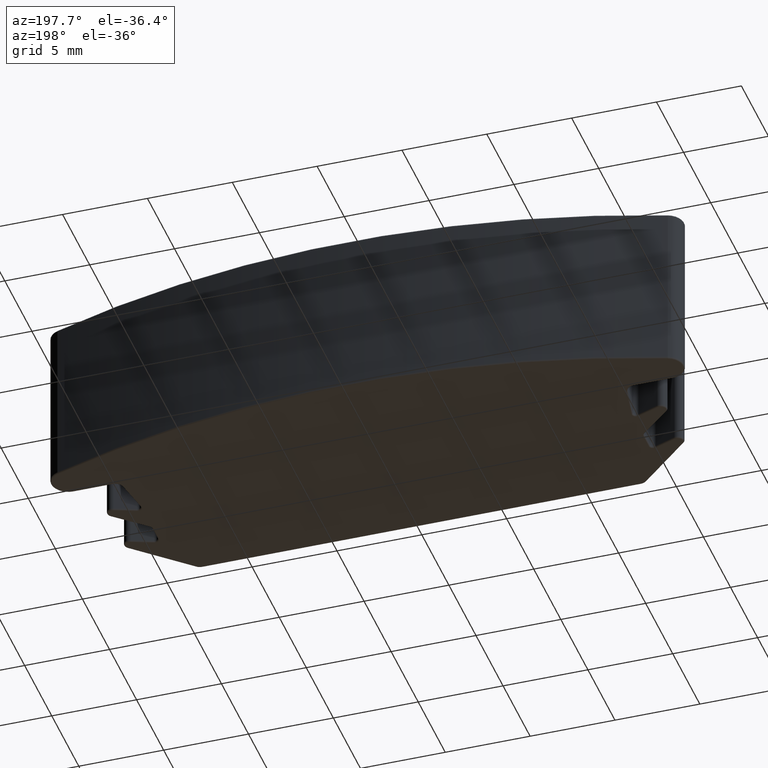
[diagram: clean part render]
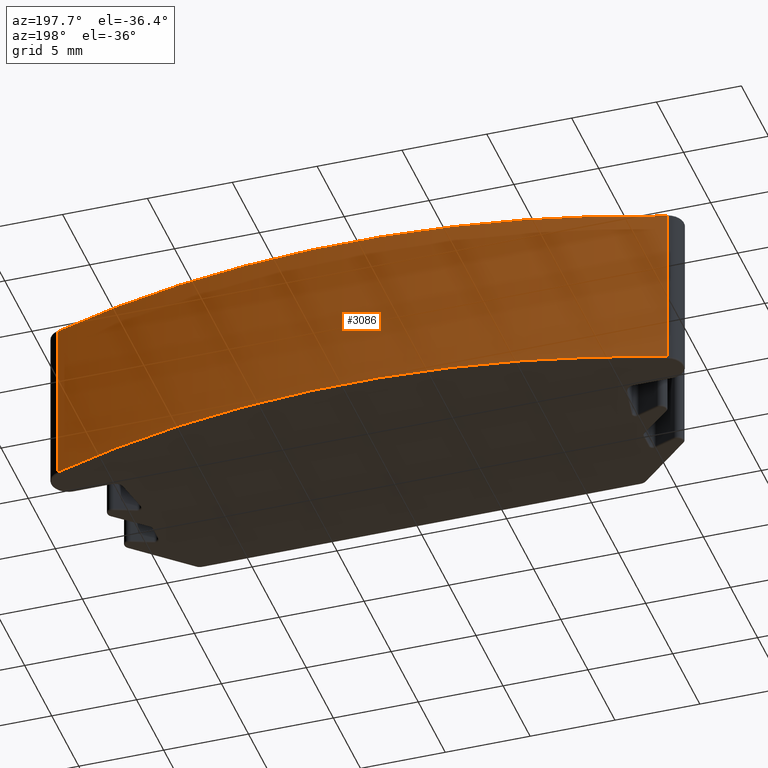
[diagram: same view with one face highlighted and labeled with its STEP entity id]
A machine part, auxiliary view. The second image highlights one B-rep face of the part: STEP entity #3086.
In plain terms, the highlighted cylindrical surface (partial cylindrical patch) has radius 54.4204 mm, axis along (0, 0, 1).
Its self-contained STEP definition (entity closure, byte-faithful):
#3 = VERTEX_POINT ( 'NONE', #147 ) ;
#126 = LINE ( 'NONE', #732, #2239 ) ;
#136 = AXIS2_PLACEMENT_3D ( 'NONE', #1357, #878, #641 ) ;
#140 = VERTEX_POINT ( 'NONE', #2900 ) ;
#147 = CARTESIAN_POINT ( 'NONE',  ( -17.98039802197973500, 10.94384169598078000, 4.899999999999998600 ) ) ;
#173 = CIRCLE ( 'NONE', #584, 54.42041666666668200 ) ;
#293 = CARTESIAN_POINT ( 'NONE',  ( -17.98039802197973500, 10.94384169598078000, -5.000000000000000000 ) ) ;
#301 = DIRECTION ( 'NONE',  ( 1.000000000000000000, 0.0000000000000000000, 0.0000000000000000000 ) ) ;
#511 = LINE ( 'NONE', #293, #1156 ) ;
#522 = ORIENTED_EDGE ( 'NONE', *, *, #2028, .T. ) ;
#561 = ORIENTED_EDGE ( 'NONE', *, *, #2879, .T. ) ;
#584 = AXIS2_PLACEMENT_3D ( 'NONE', #2559, #1297, #2530 ) ;
#641 = DIRECTION ( 'NONE',  ( 1.000000000000000000, 0.0000000000000000000, 0.0000000000000000000 ) ) ;
#702 = VERTEX_POINT ( 'NONE', #2453 ) ;
#732 = CARTESIAN_POINT ( 'NONE',  ( 17.98039802197973500, 10.94384169598078000, -5.000000000000000000 ) ) ;
#778 = VERTEX_POINT ( 'NONE', #1295 ) ;
#878 = DIRECTION ( 'NONE',  ( 0.0000000000000000000, 0.0000000000000000000, 1.000000000000000000 ) ) ;
#992 = ORIENTED_EDGE ( 'NONE', *, *, #1346, .T. ) ;
#1032 = CARTESIAN_POINT ( 'NONE',  ( 0.0000000000000000000, -40.42041666666668900, -5.000000000000000000 ) ) ;
#1156 = VECTOR ( 'NONE', #2457, 1000.000000000000000 ) ;
#1182 = DIRECTION ( 'NONE',  ( 0.0000000000000000000, 0.0000000000000000000, 1.000000000000000000 ) ) ;
#1295 = CARTESIAN_POINT ( 'NONE',  ( 17.98039802197973500, 10.94384169598078000, 4.899999999999998600 ) ) ;
#1297 = DIRECTION ( 'NONE',  ( -0.0000000000000000000, -0.0000000000000000000, -1.000000000000000000 ) ) ;
#1305 = DIRECTION ( 'NONE',  ( 0.0000000000000000000, 0.0000000000000000000, 1.000000000000000000 ) ) ;
#1346 = EDGE_CURVE ( 'NONE', #702, #140, #1507, .T. ) ;
#1357 = CARTESIAN_POINT ( 'NONE',  ( 0.0000000000000000000, -40.42041666666668900, -4.899999999999999500 ) ) ;
#1419 = CYLINDRICAL_SURFACE ( 'NONE', #2791, 54.42041666666668200 ) ;
#1507 = CIRCLE ( 'NONE', #136, 54.42041666666668200 ) ;
#1599 = EDGE_LOOP ( 'NONE', ( #561, #522, #1872, #992 ) ) ;
#1872 = ORIENTED_EDGE ( 'NONE', *, *, #2776, .F. ) ;
#2028 = EDGE_CURVE ( 'NONE', #3, #778, #173, .T. ) ;
#2239 = VECTOR ( 'NONE', #1182, 1000.000000000000000 ) ;
#2453 = CARTESIAN_POINT ( 'NONE',  ( 17.98039802197973500, 10.94384169598078000, -4.899999999999999500 ) ) ;
#2457 = DIRECTION ( 'NONE',  ( 0.0000000000000000000, 0.0000000000000000000, 1.000000000000000000 ) ) ;
#2530 = DIRECTION ( 'NONE',  ( 1.000000000000000000, 5.355224414196942200E-015, 0.0000000000000000000 ) ) ;
#2559 = CARTESIAN_POINT ( 'NONE',  ( 0.0000000000000000000, -40.42041666666668900, 4.899999999999998600 ) ) ;
#2776 = EDGE_CURVE ( 'NONE', #702, #778, #126, .T. ) ;
#2791 = AXIS2_PLACEMENT_3D ( 'NONE', #1032, #1305, #301 ) ;
#2793 = FACE_OUTER_BOUND ( 'NONE', #1599, .T. ) ;
#2879 = EDGE_CURVE ( 'NONE', #140, #3, #511, .T. ) ;
#2900 = CARTESIAN_POINT ( 'NONE',  ( -17.98039802197973500, 10.94384169598078000, -4.899999999999999500 ) ) ;
#3086 = ADVANCED_FACE ( 'NONE', ( #2793 ), #1419, .T. ) ;